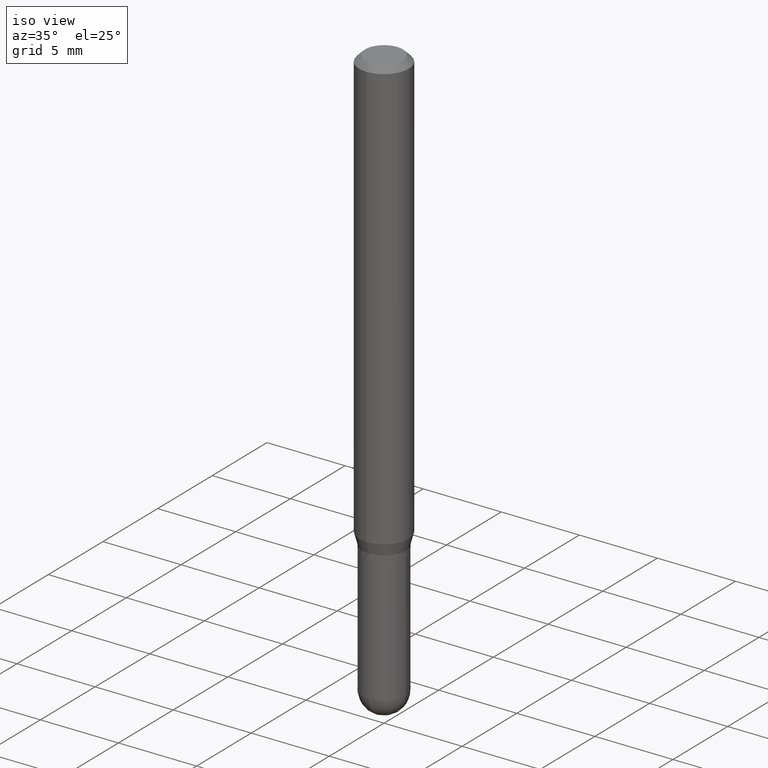
[diagram: clean part render]
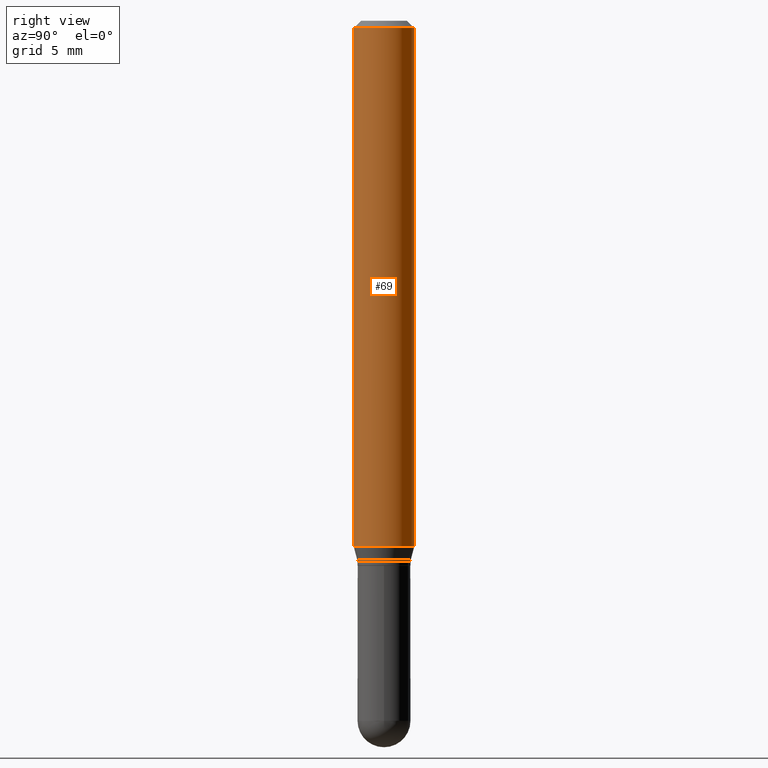
[diagram: tour spotlight — one face highlighted and labeled with its STEP entity id]
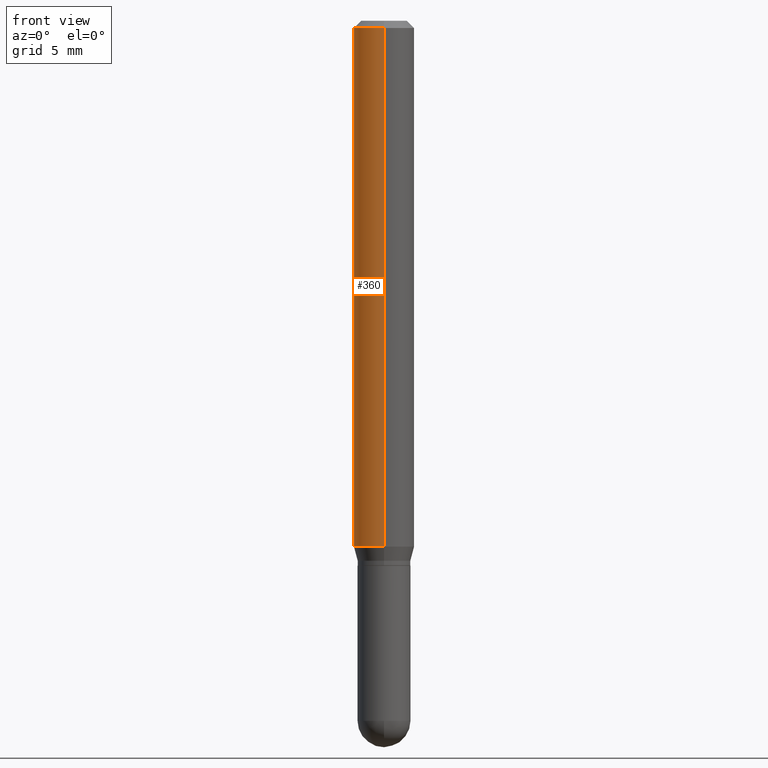
[diagram: tour spotlight — one face highlighted and labeled with its STEP entity id]
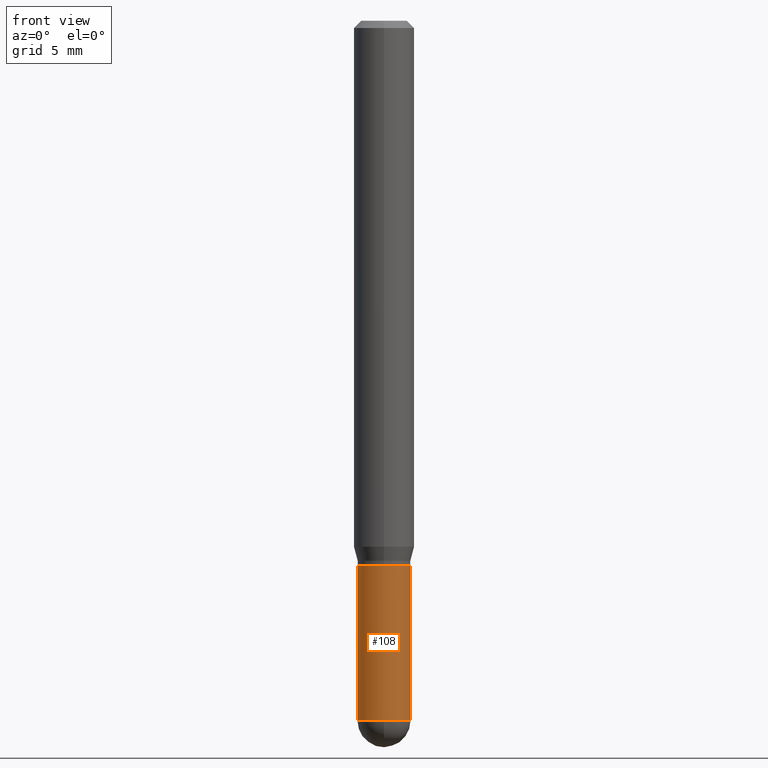
[diagram: tour spotlight — one face highlighted and labeled with its STEP entity id]
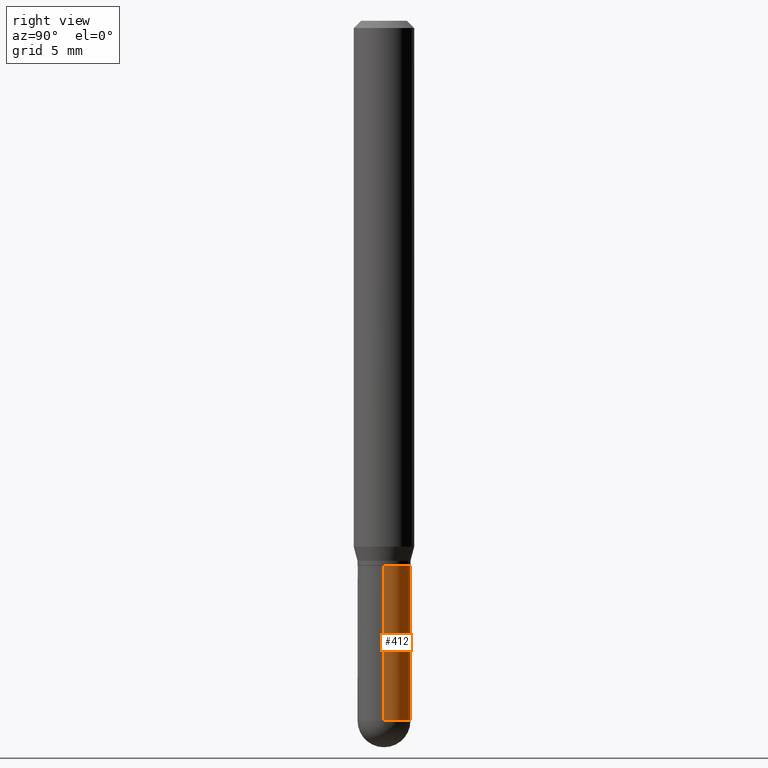
[diagram: tour spotlight — one face highlighted and labeled with its STEP entity id]
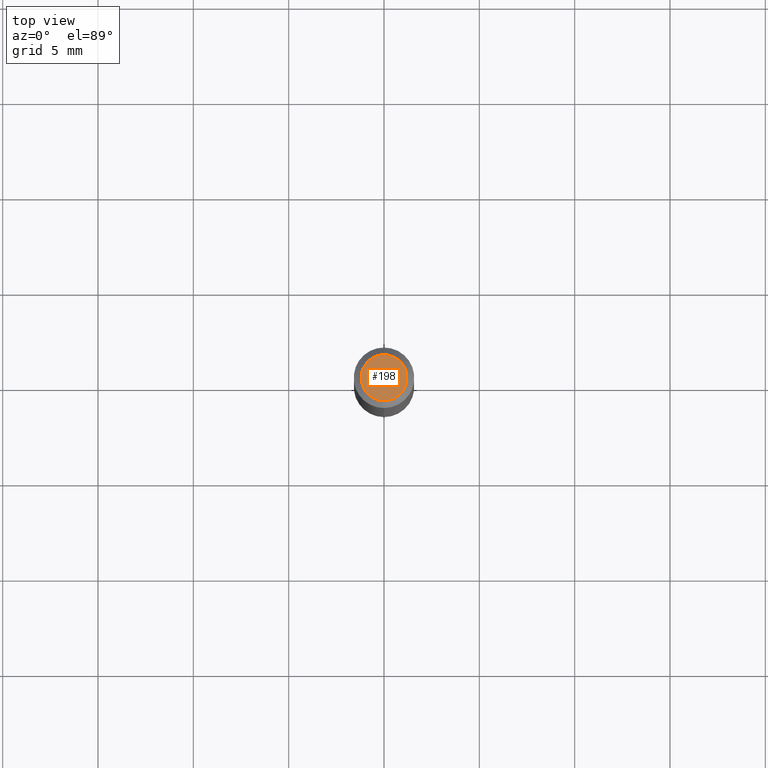
[diagram: tour spotlight — one face highlighted and labeled with its STEP entity id]
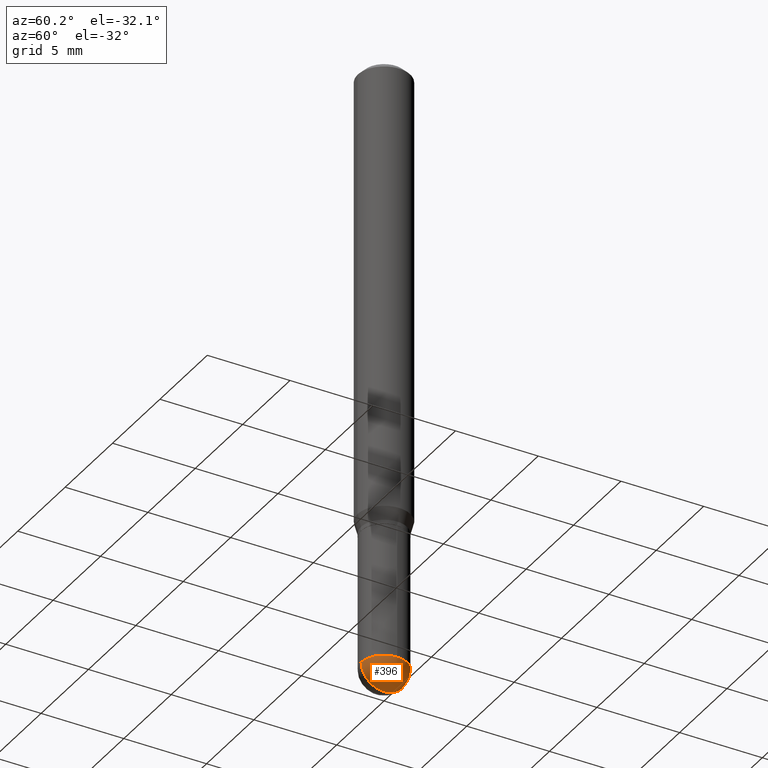
[diagram: tour spotlight — one face highlighted and labeled with its STEP entity id]
A machine part: a face-by-face anatomy tour. The part has 17 B-rep faces; the first image is the clean iso view, then the 6 largest visible faces are spotlighted one at a time (largest first), each with its STEP entity span.

Face 1 — right view, entity #69. In plain terms, the highlighted cylindrical surface (edge-blend (fillet) strip) has radius 1.5875 mm, axis along (-0, 0, 1).
Definition (entity closure, byte-faithful):
#4 = DIRECTION ( 'NONE',  ( -2.445148059648714686E-29, 3.491940666139061088E-15, 1.000000000000000000 ) ) ;
#6 = CARTESIAN_POINT ( 'NONE',  ( 4.440892098500889444E-16, 0.06249999999999619055, -1.085890003700964002 ) ) ;
#28 = CARTESIAN_POINT ( 'NONE',  ( 3.667722089473074341E-31, -5.237910999208594418E-17, -0.01500000000000000812 ) ) ;
#32 = CARTESIAN_POINT ( 'NONE',  ( -4.364351673553912750E-16, -0.06250000000000005551, -0.01499999999999979128 ) ) ;
#34 = VECTOR ( 'NONE', #279, 39.37007874015748143 ) ;
#63 = VECTOR ( 'NONE', #345, 39.37007874015748143 ) ;
#69 = ADVANCED_FACE ( 'NONE', ( #239 ), #281, .T. ) ;
#87 = ORIENTED_EDGE ( 'NONE', *, *, #435, .T. ) ;
#107 = VERTEX_POINT ( 'NONE', #219 ) ;
#142 = DIRECTION ( 'NONE',  ( -2.445148059648714686E-29, 3.491940666139061088E-15, 1.000000000000000000 ) ) ;
#153 = CARTESIAN_POINT ( 'NONE',  ( 0.000000000000000000, 0.000000000000000000, 0.000000000000000000 ) ) ;
#162 = DIRECTION ( 'NONE',  ( -6.982962677686265922E-15, -1.000000000000000000, 3.491940666139061088E-15 ) ) ;
#171 = ORIENTED_EDGE ( 'NONE', *, *, #312, .F. ) ;
#183 = DIRECTION ( 'NONE',  ( -2.445148059648714686E-29, 3.491940666139061088E-15, 1.000000000000000000 ) ) ;
#188 = CARTESIAN_POINT ( 'NONE',  ( 4.440892098500625669E-16, 0.06250000000000000000, -2.182462916336913180E-16 ) ) ;
#214 = CIRCLE ( 'NONE', #225, 0.06250000000000000000 ) ;
#219 = CARTESIAN_POINT ( 'NONE',  ( -4.364351673553652426E-16, -0.06250000000000380251, -1.085890003700963558 ) ) ;
#225 = AXIS2_PLACEMENT_3D ( 'NONE', #499, #142, #331 ) ;
#234 = EDGE_CURVE ( 'NONE', #268, #286, #400, .T. ) ;
#239 = FACE_OUTER_BOUND ( 'NONE', #403, .T. ) ;
#268 = VERTEX_POINT ( 'NONE', #32 ) ;
#271 = EDGE_CURVE ( 'NONE', #107, #483, #214, .T. ) ;
#273 = AXIS2_PLACEMENT_3D ( 'NONE', #153, #4, #162 ) ;
#279 = DIRECTION ( 'NONE',  ( -2.445148059648714686E-29, 3.491940666139060694E-15, 1.000000000000000000 ) ) ;
#281 = CYLINDRICAL_SURFACE ( 'NONE', #273, 0.06250000000000000000 ) ;
#286 = VERTEX_POINT ( 'NONE', #301 ) ;
#301 = CARTESIAN_POINT ( 'NONE',  ( 4.440892098500893388E-16, 0.06249999999999995143, -0.01500000000000022669 ) ) ;
#305 = DIRECTION ( 'NONE',  ( -6.982962677686265922E-15, -1.000000000000000000, 3.483106191921935554E-15 ) ) ;
#312 = EDGE_CURVE ( 'NONE', #107, #268, #430, .T. ) ;
#331 = DIRECTION ( 'NONE',  ( -6.982962677686265922E-15, -1.000000000000000000, 4.370956789862821150E-15 ) ) ;
#337 = ORIENTED_EDGE ( 'NONE', *, *, #271, .T. ) ;
#345 = DIRECTION ( 'NONE',  ( -2.445148059648714686E-29, 3.491940666139060694E-15, 1.000000000000000000 ) ) ;
#391 = CARTESIAN_POINT ( 'NONE',  ( -4.364351673553916201E-16, -0.06250000000000000000, 2.182462916336913180E-16 ) ) ;
#400 = CIRCLE ( 'NONE', #482, 0.06250000000000000000 ) ;
#403 = EDGE_LOOP ( 'NONE', ( #337, #87, #425, #171 ) ) ;
#425 = ORIENTED_EDGE ( 'NONE', *, *, #234, .F. ) ;
#430 = LINE ( 'NONE', #391, #34 ) ;
#435 = EDGE_CURVE ( 'NONE', #483, #286, #465, .T. ) ;
#465 = LINE ( 'NONE', #188, #63 ) ;
#482 = AXIS2_PLACEMENT_3D ( 'NONE', #28, #183, #305 ) ;
#483 = VERTEX_POINT ( 'NONE', #6 ) ;
#499 = CARTESIAN_POINT ( 'NONE',  ( 2.655161835541346993E-29, -3.791863462877290691E-15, -1.085890003700963780 ) ) ;

Face 2 — front view, entity #360. In plain terms, the highlighted cylindrical surface (edge-blend (fillet) strip) has radius 1.5875 mm, axis along (-0, 0, 1).
Definition (entity closure, byte-faithful):
#6 = CARTESIAN_POINT ( 'NONE',  ( 4.440892098500889444E-16, 0.06249999999999619055, -1.085890003700964002 ) ) ;
#32 = CARTESIAN_POINT ( 'NONE',  ( -4.364351673553912750E-16, -0.06250000000000005551, -0.01499999999999979128 ) ) ;
#34 = VECTOR ( 'NONE', #279, 39.37007874015748143 ) ;
#35 = DIRECTION ( 'NONE',  ( -2.445148059648714686E-29, 3.491940666139061088E-15, 1.000000000000000000 ) ) ;
#36 = EDGE_LOOP ( 'NONE', ( #319, #209, #357, #330 ) ) ;
#47 = DIRECTION ( 'NONE',  ( -2.445148059648714686E-29, 3.491940666139061088E-15, 1.000000000000000000 ) ) ;
#63 = VECTOR ( 'NONE', #345, 39.37007874015748143 ) ;
#81 = CARTESIAN_POINT ( 'NONE',  ( 0.000000000000000000, 0.000000000000000000, 0.000000000000000000 ) ) ;
#107 = VERTEX_POINT ( 'NONE', #219 ) ;
#109 = CARTESIAN_POINT ( 'NONE',  ( 2.655161835541346993E-29, -3.791863462877290691E-15, -1.085890003700963780 ) ) ;
#117 = CIRCLE ( 'NONE', #447, 0.06250000000000000000 ) ;
#139 = CIRCLE ( 'NONE', #507, 0.06250000000000000000 ) ;
#149 = DIRECTION ( 'NONE',  ( -2.445148059648714686E-29, 3.491940666139061088E-15, 1.000000000000000000 ) ) ;
#188 = CARTESIAN_POINT ( 'NONE',  ( 4.440892098500625669E-16, 0.06250000000000000000, -2.182462916336913180E-16 ) ) ;
#192 = CYLINDRICAL_SURFACE ( 'NONE', #233, 0.06250000000000000000 ) ;
#194 = DIRECTION ( 'NONE',  ( -6.982962677686265922E-15, -1.000000000000000000, 3.483106191921935554E-15 ) ) ;
#209 = ORIENTED_EDGE ( 'NONE', *, *, #381, .T. ) ;
#219 = CARTESIAN_POINT ( 'NONE',  ( -4.364351673553652426E-16, -0.06250000000000380251, -1.085890003700963558 ) ) ;
#233 = AXIS2_PLACEMENT_3D ( 'NONE', #81, #47, #275 ) ;
#268 = VERTEX_POINT ( 'NONE', #32 ) ;
#275 = DIRECTION ( 'NONE',  ( -6.982962677686265922E-15, -1.000000000000000000, 3.491940666139061088E-15 ) ) ;
#279 = DIRECTION ( 'NONE',  ( -2.445148059648714686E-29, 3.491940666139060694E-15, 1.000000000000000000 ) ) ;
#286 = VERTEX_POINT ( 'NONE', #301 ) ;
#301 = CARTESIAN_POINT ( 'NONE',  ( 4.440892098500893388E-16, 0.06249999999999995143, -0.01500000000000022669 ) ) ;
#307 = EDGE_CURVE ( 'NONE', #286, #268, #117, .T. ) ;
#312 = EDGE_CURVE ( 'NONE', #107, #268, #430, .T. ) ;
#315 = DIRECTION ( 'NONE',  ( -6.982962677686265922E-15, -1.000000000000000000, 4.370956789862821150E-15 ) ) ;
#319 = ORIENTED_EDGE ( 'NONE', *, *, #435, .F. ) ;
#330 = ORIENTED_EDGE ( 'NONE', *, *, #307, .F. ) ;
#345 = DIRECTION ( 'NONE',  ( -2.445148059648714686E-29, 3.491940666139060694E-15, 1.000000000000000000 ) ) ;
#357 = ORIENTED_EDGE ( 'NONE', *, *, #312, .T. ) ;
#360 = ADVANCED_FACE ( 'NONE', ( #468 ), #192, .T. ) ;
#381 = EDGE_CURVE ( 'NONE', #483, #107, #139, .T. ) ;
#391 = CARTESIAN_POINT ( 'NONE',  ( -4.364351673553916201E-16, -0.06250000000000000000, 2.182462916336913180E-16 ) ) ;
#430 = LINE ( 'NONE', #391, #34 ) ;
#435 = EDGE_CURVE ( 'NONE', #483, #286, #465, .T. ) ;
#447 = AXIS2_PLACEMENT_3D ( 'NONE', #474, #35, #194 ) ;
#465 = LINE ( 'NONE', #188, #63 ) ;
#468 = FACE_OUTER_BOUND ( 'NONE', #36, .T. ) ;
#474 = CARTESIAN_POINT ( 'NONE',  ( 3.667722089473074341E-31, -5.237910999208594418E-17, -0.01500000000000000812 ) ) ;
#483 = VERTEX_POINT ( 'NONE', #6 ) ;
#507 = AXIS2_PLACEMENT_3D ( 'NONE', #109, #149, #315 ) ;

Face 3 — front view, entity #108. In plain terms, the highlighted cylindrical surface (edge-blend (fillet) strip) has radius 1.3894 mm, axis along (-0, 0, 1).
Definition (entity closure, byte-faithful):
#1 = CIRCLE ( 'NONE', #296, 0.05469999999999999862 ) ;
#13 = ORIENTED_EDGE ( 'NONE', *, *, #348, .T. ) ;
#37 = DIRECTION ( 'NONE',  ( -2.445468806185136597E-29, 3.491481338843145583E-15, 1.000000000000000000 ) ) ;
#44 = CARTESIAN_POINT ( 'NONE',  ( 3.534436065579377749E-29, -5.046237979029997798E-15, -1.445300000000000029 ) ) ;
#90 = CARTESIAN_POINT ( 'NONE',  ( 0.05469999999999999862, -4.309884564667978405E-15, -1.125000000000000222 ) ) ;
#103 = EDGE_LOOP ( 'NONE', ( #350, #125, #313, #13, #230 ) ) ;
#106 = VERTEX_POINT ( 'NONE', #90 ) ;
#108 = ADVANCED_FACE ( 'NONE', ( #212 ), #320, .T. ) ;
#112 = DIRECTION ( 'NONE',  ( -2.445468806185136877E-29, 3.491481338843145188E-15, 1.000000000000000000 ) ) ;
#116 = CARTESIAN_POINT ( 'NONE',  ( 0.05470000000000000556, -4.869045301083706902E-15, -1.445300000000000029 ) ) ;
#125 = ORIENTED_EDGE ( 'NONE', *, *, #388, .T. ) ;
#128 = DIRECTION ( 'NONE',  ( 1.000000000000000000, -6.982962677686266711E-15, 4.876176775795935793E-29 ) ) ;
#135 = CARTESIAN_POINT ( 'NONE',  ( -3.886668764607396383E-16, -0.05470000000000508483, -1.445299999999999807 ) ) ;
#137 = DIRECTION ( 'NONE',  ( -2.445468806185136877E-29, 3.491481338843145188E-15, 1.000000000000000000 ) ) ;
#146 = LINE ( 'NONE', #189, #154 ) ;
#154 = VECTOR ( 'NONE', #112, 39.37007874015748143 ) ;
#172 = DIRECTION ( 'NONE',  ( -2.445468806185136597E-29, 3.491481338843145583E-15, 1.000000000000000000 ) ) ;
#189 = CARTESIAN_POINT ( 'NONE',  ( 0.05469999999999999862, -3.819680584694387859E-16, 2.667268696360376954E-30 ) ) ;
#197 = DIRECTION ( 'NONE',  ( -2.445468806185136597E-29, 3.491481338843145583E-15, 1.000000000000000000 ) ) ;
#212 = FACE_OUTER_BOUND ( 'NONE', #103, .T. ) ;
#230 = ORIENTED_EDGE ( 'NONE', *, *, #429, .F. ) ;
#231 = CARTESIAN_POINT ( 'NONE',  ( -0.05469999999999999862, 3.886668764607747919E-16, -2.690657494369433708E-30 ) ) ;
#236 = VERTEX_POINT ( 'NONE', #414 ) ;
#244 = AXIS2_PLACEMENT_3D ( 'NONE', #44, #197, #352 ) ;
#245 = CARTESIAN_POINT ( 'NONE',  ( -0.05469999999999999862, -4.098410366153493916E-15, -1.125000000000000222 ) ) ;
#256 = EDGE_CURVE ( 'NONE', #236, #423, #424, .T. ) ;
#272 = VERTEX_POINT ( 'NONE', #135 ) ;
#280 = VECTOR ( 'NONE', #137, 39.37007874015748143 ) ;
#296 = AXIS2_PLACEMENT_3D ( 'NONE', #389, #37, #342 ) ;
#304 = AXIS2_PLACEMENT_3D ( 'NONE', #328, #172, #128 ) ;
#313 = ORIENTED_EDGE ( 'NONE', *, *, #501, .T. ) ;
#320 = CYLINDRICAL_SURFACE ( 'NONE', #304, 0.05469999999999999862 ) ;
#328 = CARTESIAN_POINT ( 'NONE',  ( 0.000000000000000000, 0.000000000000000000, 0.000000000000000000 ) ) ;
#342 = DIRECTION ( 'NONE',  ( 1.000000000000000000, -6.982962677686269866E-15, 0.000000000000000000 ) ) ;
#348 = EDGE_CURVE ( 'NONE', #390, #106, #146, .T. ) ;
#350 = ORIENTED_EDGE ( 'NONE', *, *, #256, .F. ) ;
#352 = DIRECTION ( 'NONE',  ( 1.000000000000000000, -6.982962677686259611E-15, 0.000000000000000000 ) ) ;
#353 = DIRECTION ( 'NONE',  ( -2.445468806185136597E-29, 3.491481338843145583E-15, 1.000000000000000000 ) ) ;
#376 = CIRCLE ( 'NONE', #244, 0.05470000000000000556 ) ;
#388 = EDGE_CURVE ( 'NONE', #236, #272, #498, .T. ) ;
#389 = CARTESIAN_POINT ( 'NONE',  ( 2.751152406958279232E-29, -3.927916506198539224E-15, -1.125000000000000222 ) ) ;
#390 = VERTEX_POINT ( 'NONE', #116 ) ;
#414 = CARTESIAN_POINT ( 'NONE',  ( -0.05470000000000000556, -4.098410366153493916E-15, -1.445300000000000029 ) ) ;
#423 = VERTEX_POINT ( 'NONE', #245 ) ;
#424 = LINE ( 'NONE', #231, #280 ) ;
#426 = CARTESIAN_POINT ( 'NONE',  ( 3.534436065579377749E-29, -5.046237979029997798E-15, -1.445300000000000029 ) ) ;
#429 = EDGE_CURVE ( 'NONE', #423, #106, #1, .T. ) ;
#470 = AXIS2_PLACEMENT_3D ( 'NONE', #426, #353, #512 ) ;
#498 = CIRCLE ( 'NONE', #470, 0.05470000000000000556 ) ;
#501 = EDGE_CURVE ( 'NONE', #272, #390, #376, .T. ) ;
#512 = DIRECTION ( 'NONE',  ( 1.000000000000000000, -6.982962677686259611E-15, 0.000000000000000000 ) ) ;

Face 4 — right view, entity #412. In plain terms, the highlighted cylindrical surface (edge-blend (fillet) strip) has radius 1.3894 mm, axis along (-0, 0, 1).
Definition (entity closure, byte-faithful):
#5 = EDGE_CURVE ( 'NONE', #106, #423, #444, .T. ) ;
#10 = CIRCLE ( 'NONE', #176, 0.05470000000000000556 ) ;
#31 = EDGE_CURVE ( 'NONE', #390, #200, #10, .T. ) ;
#67 = CARTESIAN_POINT ( 'NONE',  ( 3.819680584694743340E-16, 0.05469999999999498180, -1.445300000000000251 ) ) ;
#68 = EDGE_LOOP ( 'NONE', ( #463, #446, #382, #113, #71 ) ) ;
#71 = ORIENTED_EDGE ( 'NONE', *, *, #31, .T. ) ;
#72 = DIRECTION ( 'NONE',  ( -2.445468806185136597E-29, 3.491481338843145583E-15, 1.000000000000000000 ) ) ;
#90 = CARTESIAN_POINT ( 'NONE',  ( 0.05469999999999999862, -4.309884564667978405E-15, -1.125000000000000222 ) ) ;
#106 = VERTEX_POINT ( 'NONE', #90 ) ;
#112 = DIRECTION ( 'NONE',  ( -2.445468806185136877E-29, 3.491481338843145188E-15, 1.000000000000000000 ) ) ;
#113 = ORIENTED_EDGE ( 'NONE', *, *, #348, .F. ) ;
#116 = CARTESIAN_POINT ( 'NONE',  ( 0.05470000000000000556, -4.869045301083706902E-15, -1.445300000000000029 ) ) ;
#118 = EDGE_CURVE ( 'NONE', #200, #236, #243, .T. ) ;
#137 = DIRECTION ( 'NONE',  ( -2.445468806185136877E-29, 3.491481338843145188E-15, 1.000000000000000000 ) ) ;
#146 = LINE ( 'NONE', #189, #154 ) ;
#150 = DIRECTION ( 'NONE',  ( 1.000000000000000000, -6.982962677686266711E-15, 4.876176775795935793E-29 ) ) ;
#152 = CYLINDRICAL_SURFACE ( 'NONE', #266, 0.05469999999999999862 ) ;
#154 = VECTOR ( 'NONE', #112, 39.37007874015748143 ) ;
#168 = DIRECTION ( 'NONE',  ( -2.445468806185136597E-29, 3.491481338843145583E-15, 1.000000000000000000 ) ) ;
#176 = AXIS2_PLACEMENT_3D ( 'NONE', #489, #168, #368 ) ;
#189 = CARTESIAN_POINT ( 'NONE',  ( 0.05469999999999999862, -3.819680584694387859E-16, 2.667268696360376954E-30 ) ) ;
#200 = VERTEX_POINT ( 'NONE', #67 ) ;
#231 = CARTESIAN_POINT ( 'NONE',  ( -0.05469999999999999862, 3.886668764607747919E-16, -2.690657494369433708E-30 ) ) ;
#236 = VERTEX_POINT ( 'NONE', #414 ) ;
#243 = CIRCLE ( 'NONE', #437, 0.05470000000000000556 ) ;
#245 = CARTESIAN_POINT ( 'NONE',  ( -0.05469999999999999862, -4.098410366153493916E-15, -1.125000000000000222 ) ) ;
#256 = EDGE_CURVE ( 'NONE', #236, #423, #424, .T. ) ;
#266 = AXIS2_PLACEMENT_3D ( 'NONE', #502, #72, #150 ) ;
#280 = VECTOR ( 'NONE', #137, 39.37007874015748143 ) ;
#289 = DIRECTION ( 'NONE',  ( 1.000000000000000000, -6.982962677686269866E-15, 0.000000000000000000 ) ) ;
#293 = CARTESIAN_POINT ( 'NONE',  ( 2.751152406958279232E-29, -3.927916506198539224E-15, -1.125000000000000222 ) ) ;
#294 = DIRECTION ( 'NONE',  ( 1.000000000000000000, -6.982962677686259611E-15, 0.000000000000000000 ) ) ;
#309 = FACE_OUTER_BOUND ( 'NONE', #68, .T. ) ;
#348 = EDGE_CURVE ( 'NONE', #390, #106, #146, .T. ) ;
#364 = DIRECTION ( 'NONE',  ( -2.445468806185136597E-29, 3.491481338843145583E-15, 1.000000000000000000 ) ) ;
#365 = AXIS2_PLACEMENT_3D ( 'NONE', #293, #364, #289 ) ;
#368 = DIRECTION ( 'NONE',  ( 1.000000000000000000, -6.982962677686259611E-15, 0.000000000000000000 ) ) ;
#382 = ORIENTED_EDGE ( 'NONE', *, *, #5, .F. ) ;
#390 = VERTEX_POINT ( 'NONE', #116 ) ;
#412 = ADVANCED_FACE ( 'NONE', ( #309 ), #152, .T. ) ;
#414 = CARTESIAN_POINT ( 'NONE',  ( -0.05470000000000000556, -4.098410366153493916E-15, -1.445300000000000029 ) ) ;
#423 = VERTEX_POINT ( 'NONE', #245 ) ;
#424 = LINE ( 'NONE', #231, #280 ) ;
#437 = AXIS2_PLACEMENT_3D ( 'NONE', #479, #443, #294 ) ;
#443 = DIRECTION ( 'NONE',  ( -2.445468806185136597E-29, 3.491481338843145583E-15, 1.000000000000000000 ) ) ;
#444 = CIRCLE ( 'NONE', #365, 0.05469999999999999862 ) ;
#446 = ORIENTED_EDGE ( 'NONE', *, *, #256, .T. ) ;
#463 = ORIENTED_EDGE ( 'NONE', *, *, #118, .T. ) ;
#479 = CARTESIAN_POINT ( 'NONE',  ( 3.534436065579377749E-29, -5.046237979029997798E-15, -1.445300000000000029 ) ) ;
#489 = CARTESIAN_POINT ( 'NONE',  ( 3.534436065579377749E-29, -5.046237979029997798E-15, -1.445300000000000029 ) ) ;
#502 = CARTESIAN_POINT ( 'NONE',  ( 0.000000000000000000, 0.000000000000000000, 0.000000000000000000 ) ) ;

Face 5 — top view, entity #198. In plain terms, the highlighted planar face has unit normal (0, -0, -1).
Definition (entity closure, byte-faithful):
#25 = DIRECTION ( 'NONE',  ( 6.982962677686265922E-15, 1.000000000000000000, -3.491940666139060694E-15 ) ) ;
#70 = CARTESIAN_POINT ( 'NONE',  ( 2.161144490363163213E-46, -3.086352297367912300E-32, -8.838501545275121321E-18 ) ) ;
#86 = VERTEX_POINT ( 'NONE', #169 ) ;
#92 = EDGE_LOOP ( 'NONE', ( #190, #211 ) ) ;
#93 = DIRECTION ( 'NONE',  ( -2.445148059648714686E-29, 3.491940666139061088E-15, 1.000000000000000000 ) ) ;
#131 = EDGE_CURVE ( 'NONE', #141, #86, #428, .T. ) ;
#141 = VERTEX_POINT ( 'NONE', #371 ) ;
#169 = CARTESIAN_POINT ( 'NONE',  ( -3.773273898774340269E-16, -0.04749999999999999362, 1.570286800963302463E-16 ) ) ;
#190 = ORIENTED_EDGE ( 'NONE', *, *, #131, .T. ) ;
#195 = AXIS2_PLACEMENT_3D ( 'NONE', #378, #460, #25 ) ;
#198 = ADVANCED_FACE ( 'NONE', ( #373 ), #299, .F. ) ;
#206 = EDGE_CURVE ( 'NONE', #86, #141, #274, .T. ) ;
#211 = ORIENTED_EDGE ( 'NONE', *, *, #206, .T. ) ;
#229 = DIRECTION ( 'NONE',  ( -6.982962677686266711E-15, -1.000000000000000000, 3.491940666139061088E-15 ) ) ;
#258 = DIRECTION ( 'NONE',  ( -6.982962677686266711E-15, -1.000000000000000000, 3.491940666139061088E-15 ) ) ;
#259 = AXIS2_PLACEMENT_3D ( 'NONE', #70, #334, #229 ) ;
#274 = CIRCLE ( 'NONE', #259, 0.04749999999999999362 ) ;
#299 = PLANE ( 'NONE',  #195 ) ;
#334 = DIRECTION ( 'NONE',  ( -2.445148059648714686E-29, 3.491940666139061088E-15, 1.000000000000000000 ) ) ;
#371 = CARTESIAN_POINT ( 'NONE',  ( 3.840629472727447874E-16, 0.04749999999999999362, -1.747056831868805136E-16 ) ) ;
#373 = FACE_OUTER_BOUND ( 'NONE', #92, .T. ) ;
#378 = CARTESIAN_POINT ( 'NONE',  ( 3.316907271900976096E-16, 0.04749999999999999362, -1.702864324142429345E-16 ) ) ;
#428 = CIRCLE ( 'NONE', #456, 0.04749999999999999362 ) ;
#453 = CARTESIAN_POINT ( 'NONE',  ( 2.161144490363163213E-46, -3.086352297367912300E-32, -8.838501545275121321E-18 ) ) ;
#456 = AXIS2_PLACEMENT_3D ( 'NONE', #453, #93, #258 ) ;
#460 = DIRECTION ( 'NONE',  ( 2.445148059648714406E-29, -3.491940666139060694E-15, -1.000000000000000000 ) ) ;

Face 6 — auxiliary view, entity #396. In plain terms, the highlighted spherical surface has radius 1.3894 mm.
Definition (entity closure, byte-faithful):
#3 = VERTEX_POINT ( 'NONE', #398 ) ;
#10 = CIRCLE ( 'NONE', #176, 0.05470000000000000556 ) ;
#31 = EDGE_CURVE ( 'NONE', #390, #200, #10, .T. ) ;
#44 = CARTESIAN_POINT ( 'NONE',  ( 3.534436065579377749E-29, -5.046237979029997798E-15, -1.445300000000000029 ) ) ;
#45 = DIRECTION ( 'NONE',  ( -1.000000000000000000, 6.982962677686265922E-15, -4.883557194083112901E-29 ) ) ;
#50 = AXIS2_PLACEMENT_3D ( 'NONE', #434, #45, #510 ) ;
#67 = CARTESIAN_POINT ( 'NONE',  ( 3.819680584694743340E-16, 0.05469999999999498180, -1.445300000000000251 ) ) ;
#78 = EDGE_CURVE ( 'NONE', #3, #272, #287, .T. ) ;
#116 = CARTESIAN_POINT ( 'NONE',  ( 0.05470000000000000556, -4.869045301083706902E-15, -1.445300000000000029 ) ) ;
#130 = DIRECTION ( 'NONE',  ( -7.105427357601001070E-15, -1.000000000000000000, 0.000000000000000000 ) ) ;
#135 = CARTESIAN_POINT ( 'NONE',  ( -3.886668764607396383E-16, -0.05470000000000508483, -1.445299999999999807 ) ) ;
#147 = ORIENTED_EDGE ( 'NONE', *, *, #501, .F. ) ;
#151 = EDGE_CURVE ( 'NONE', #3, #200, #475, .T. ) ;
#168 = DIRECTION ( 'NONE',  ( -2.445468806185136597E-29, 3.491481338843145583E-15, 1.000000000000000000 ) ) ;
#176 = AXIS2_PLACEMENT_3D ( 'NONE', #489, #168, #368 ) ;
#197 = DIRECTION ( 'NONE',  ( -2.445468806185136597E-29, 3.491481338843145583E-15, 1.000000000000000000 ) ) ;
#200 = VERTEX_POINT ( 'NONE', #67 ) ;
#226 = DIRECTION ( 'NONE',  ( 1.000000000000000000, -6.982962677686265922E-15, 4.883557194083112340E-29 ) ) ;
#244 = AXIS2_PLACEMENT_3D ( 'NONE', #44, #197, #352 ) ;
#249 = ORIENTED_EDGE ( 'NONE', *, *, #78, .F. ) ;
#272 = VERTEX_POINT ( 'NONE', #135 ) ;
#278 = SPHERICAL_SURFACE ( 'NONE', #50, 0.05470000000000006107 ) ;
#282 = ORIENTED_EDGE ( 'NONE', *, *, #31, .F. ) ;
#287 = CIRCLE ( 'NONE', #480, 0.05470000000000006107 ) ;
#310 = ORIENTED_EDGE ( 'NONE', *, *, #151, .T. ) ;
#323 = DIRECTION ( 'NONE',  ( -1.000000000000000000, 7.105427357601001070E-15, -4.926315508542082329E-29 ) ) ;
#327 = EDGE_LOOP ( 'NONE', ( #249, #310, #282, #147 ) ) ;
#339 = DIRECTION ( 'NONE',  ( 6.982962677686265133E-15, 1.000000000000000000, 0.000000000000000000 ) ) ;
#346 = FACE_OUTER_BOUND ( 'NONE', #327, .T. ) ;
#352 = DIRECTION ( 'NONE',  ( 1.000000000000000000, -6.982962677686259611E-15, 0.000000000000000000 ) ) ;
#368 = DIRECTION ( 'NONE',  ( 1.000000000000000000, -6.982962677686259611E-15, 0.000000000000000000 ) ) ;
#376 = CIRCLE ( 'NONE', #244, 0.05470000000000000556 ) ;
#390 = VERTEX_POINT ( 'NONE', #116 ) ;
#396 = ADVANCED_FACE ( 'NONE', ( #346 ), #278, .T. ) ;
#398 = CARTESIAN_POINT ( 'NONE',  ( 3.665864329476799220E-29, -5.240571417260386673E-15, -1.500000000000000222 ) ) ;
#410 = CARTESIAN_POINT ( 'NONE',  ( 3.529758305977566399E-29, -5.052936797021334001E-15, -1.445300000000000029 ) ) ;
#422 = CARTESIAN_POINT ( 'NONE',  ( 3.529758305977566399E-29, -5.052936797021334001E-15, -1.445300000000000029 ) ) ;
#434 = CARTESIAN_POINT ( 'NONE',  ( 3.529758305977566399E-29, -5.052936797021334001E-15, -1.445300000000000029 ) ) ;
#475 = CIRCLE ( 'NONE', #491, 0.05470000000000006107 ) ;
#480 = AXIS2_PLACEMENT_3D ( 'NONE', #410, #323, #130 ) ;
#489 = CARTESIAN_POINT ( 'NONE',  ( 3.534436065579377749E-29, -5.046237979029997798E-15, -1.445300000000000029 ) ) ;
#491 = AXIS2_PLACEMENT_3D ( 'NONE', #422, #226, #339 ) ;
#501 = EDGE_CURVE ( 'NONE', #272, #390, #376, .T. ) ;
#510 = DIRECTION ( 'NONE',  ( 6.982962677686265922E-15, 1.000000000000000000, -4.994237648380731355E-15 ) ) ;